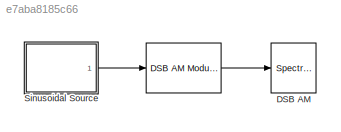
MODEL slx_e7aba8185c66
KIND model
BLOCK [Reference]     REF=commanapbnd3/DSB AM
Modulator
Passband
  Fc = 20000
  Offset = 1.5
  Ph = -pi/2
  Ports = [1, 1]
  SourceBlock = commanapbnd3/DSB AM\nModulator\nPassband
  SourceType = DSB AM Modulator Passband
BLOCK [SpectrumAnalyzer] DSB AM
  Ports = [1]
  ScopeSpecificationString = spbscopes.SpectrumAnalyzerBlockCfg('CurrentConfiguration', extmgr.ConfigurationSet(extmgr.Configuration('Core','General UI',true,'FigureColor',[0.313725490196078 0.313725490196078 0.313725490196078]),extmgr.Configuration('Core','Source UI',true),extmgr.Configuration('Sources','WiredSimulink',true),extmgr.Configuration('Sources','Simulink',false),extmgr.Configuration('Sources','File',false),extmgr....<+7111ch>
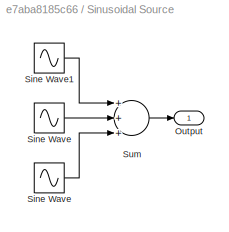
BLOCK [SubSystem] Sinusoidal Source
  Ports = [0, 1]
  RequestExecContextInheritance = off
BLOCK [Sin] Sinusoidal Source/ Sine Wave 
  Amplitude = 0.2
  Frequency = 5000*pi
  Ports = [0, 1]
  SampleTime = 20e-6
BLOCK [Outport] Sinusoidal Source/Output
  IconDisplay = Port number
BLOCK [Sin] Sinusoidal Source/Sine Wave 
  Amplitude = 0.5
  Frequency = 3000*pi
  Ports = [0, 1]
  SampleTime = 20e-6
BLOCK [Sin] Sinusoidal Source/Sine Wave1
  Frequency = 1000*pi
  Ports = [0, 1]
  SampleTime = 20e-6
BLOCK [Sum] Sinusoidal Source/Sum
  InputSameDT = off
  Inputs = +++
  OutDataTypeStr = Inherit: Inherit via internal rule
  Ports = [3, 1]
  SaturateOnIntegerOverflow = off
LINE   :1 -> DSB AM:1
LINE Sinusoidal Source/ Sine Wave :1 -> Sinusoidal Source/Sum:3
LINE Sinusoidal Source/Sine Wave :1 -> Sinusoidal Source/Sum:2
LINE Sinusoidal Source/Sine Wave1:1 -> Sinusoidal Source/Sum:1
LINE Sinusoidal Source/Sum:1 -> Sinusoidal Source/Output:1
LINE Sinusoidal Source:1 ->   :1
